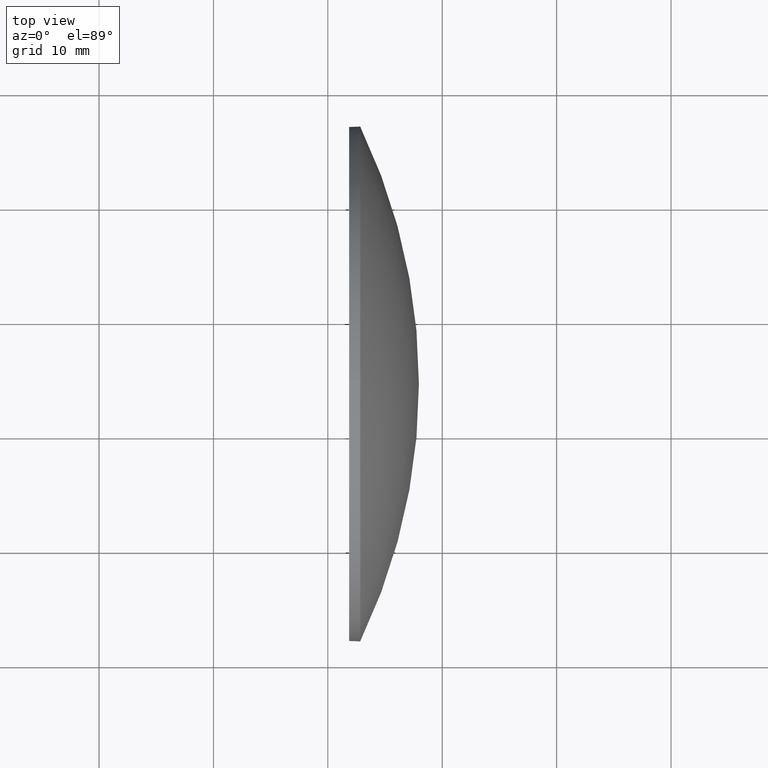
[diagram: clean part render]
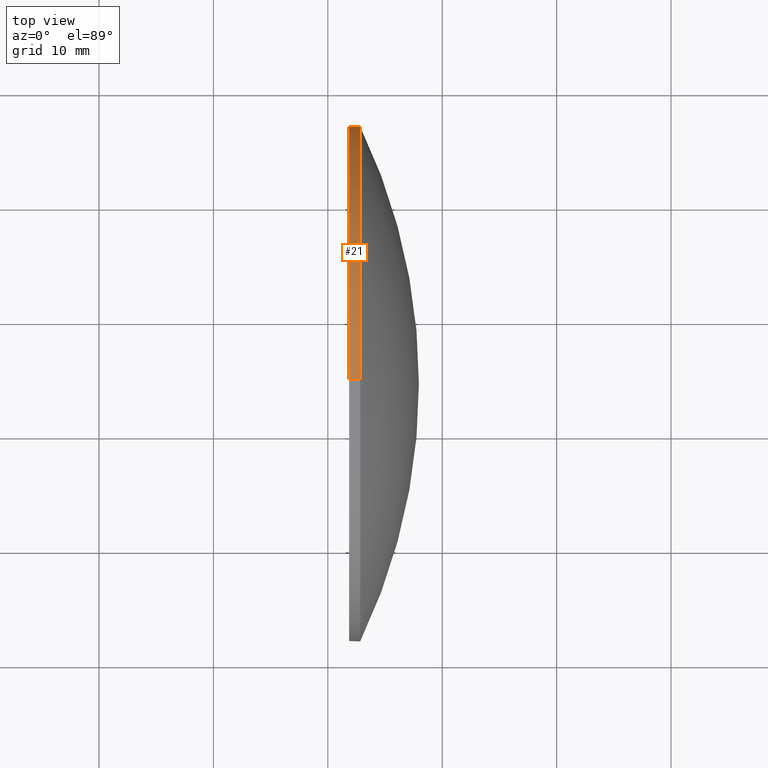
[diagram: same view with one face highlighted and labeled with its STEP entity id]
A machine part, top view. The second image highlights one B-rep face of the part: STEP entity #21.
In plain terms, the highlighted cylindrical surface (partial cylindrical patch) has radius 22.5 mm, axis along (-1, -0, -0).
Its self-contained STEP definition (entity closure, byte-faithful):
#2 = CARTESIAN_POINT ( 'NONE',  ( 192.8294665386367500, -255.6056703500554500, 0.0000000000000000000 ) ) ;
#13 = VECTOR ( 'NONE', #97, 1000.000000000000000 ) ;
#16 = CIRCLE ( 'NONE', #114, 22.49999999999999300 ) ;
#21 = ADVANCED_FACE ( 'NONE', ( #49 ), #177, .T. ) ;
#24 = VECTOR ( 'NONE', #33, 1000.000000000000000 ) ;
#26 = DIRECTION ( 'NONE',  ( -1.000000000000000000, -0.0000000000000000000, -0.0000000000000000000 ) ) ;
#28 = DIRECTION ( 'NONE',  ( -1.000000000000000000, -0.0000000000000000000, -0.0000000000000000000 ) ) ;
#33 = DIRECTION ( 'NONE',  ( -1.000000000000000000, -0.0000000000000000000, -0.0000000000000000000 ) ) ;
#45 = ORIENTED_EDGE ( 'NONE', *, *, #78, .F. ) ;
#48 = LINE ( 'NONE', #84, #24 ) ;
#49 = FACE_OUTER_BOUND ( 'NONE', #92, .T. ) ;
#50 = CARTESIAN_POINT ( 'NONE',  ( 192.8294665386367500, -255.6056703500554500, -22.49999999999999300 ) ) ;
#55 = VERTEX_POINT ( 'NONE', #69 ) ;
#59 = ORIENTED_EDGE ( 'NONE', *, *, #155, .T. ) ;
#69 = CARTESIAN_POINT ( 'NONE',  ( 191.8594665386367500, -255.6056703500554500, -22.49999999999999300 ) ) ;
#75 = DIRECTION ( 'NONE',  ( 0.0000000000000000000, 0.0000000000000000000, 1.000000000000000000 ) ) ;
#78 = EDGE_CURVE ( 'NONE', #159, #55, #16, .T. ) ;
#84 = CARTESIAN_POINT ( 'NONE',  ( 187.8163450691519100, -255.6056703500554500, -22.49999999999999300 ) ) ;
#85 = VERTEX_POINT ( 'NONE', #140 ) ;
#92 = EDGE_LOOP ( 'NONE', ( #151, #161, #45, #116, #59 ) ) ;
#94 = DIRECTION ( 'NONE',  ( 0.0000000000000000000, 0.0000000000000000000, 1.000000000000000000 ) ) ;
#96 = DIRECTION ( 'NONE',  ( -1.000000000000000000, -0.0000000000000000000, -0.0000000000000000000 ) ) ;
#97 = DIRECTION ( 'NONE',  ( -1.000000000000000000, -0.0000000000000000000, -0.0000000000000000000 ) ) ;
#98 = DIRECTION ( 'NONE',  ( -1.000000000000000000, -0.0000000000000000000, -0.0000000000000000000 ) ) ;
#102 = VERTEX_POINT ( 'NONE', #122 ) ;
#104 = AXIS2_PLACEMENT_3D ( 'NONE', #147, #96, #75 ) ;
#105 = CARTESIAN_POINT ( 'NONE',  ( 191.8594665386367500, -255.6056703500554500, 0.0000000000000000000 ) ) ;
#106 = DIRECTION ( 'NONE',  ( 0.0000000000000000000, 0.0000000000000000000, 1.000000000000000000 ) ) ;
#109 = LINE ( 'NONE', #123, #13 ) ;
#110 = DIRECTION ( 'NONE',  ( 0.0000000000000000000, 0.0000000000000000000, 1.000000000000000000 ) ) ;
#114 = AXIS2_PLACEMENT_3D ( 'NONE', #105, #26, #106 ) ;
#116 = ORIENTED_EDGE ( 'NONE', *, *, #176, .F. ) ;
#119 = EDGE_CURVE ( 'NONE', #85, #169, #150, .T. ) ;
#122 = CARTESIAN_POINT ( 'NONE',  ( 192.8294665386367500, -255.6056703500554500, 22.49999999999999300 ) ) ;
#123 = CARTESIAN_POINT ( 'NONE',  ( 187.8163450691519100, -255.6056703500554500, 22.49999999999999300 ) ) ;
#140 = CARTESIAN_POINT ( 'NONE',  ( 192.8294665386367500, -233.1056703500554500, 0.0000000000000000000 ) ) ;
#143 = CARTESIAN_POINT ( 'NONE',  ( 191.8594665386367500, -255.6056703500554500, 22.49999999999999300 ) ) ;
#146 = EDGE_CURVE ( 'NONE', #169, #55, #48, .T. ) ;
#147 = CARTESIAN_POINT ( 'NONE',  ( 192.8294665386367500, -255.6056703500554500, 0.0000000000000000000 ) ) ;
#150 = CIRCLE ( 'NONE', #104, 22.49999999999999300 ) ;
#151 = ORIENTED_EDGE ( 'NONE', *, *, #119, .T. ) ;
#155 = EDGE_CURVE ( 'NONE', #102, #85, #175, .T. ) ;
#156 = CARTESIAN_POINT ( 'NONE',  ( 187.8163450691519100, -255.6056703500554500, 0.0000000000000000000 ) ) ;
#159 = VERTEX_POINT ( 'NONE', #143 ) ;
#161 = ORIENTED_EDGE ( 'NONE', *, *, #146, .T. ) ;
#168 = AXIS2_PLACEMENT_3D ( 'NONE', #156, #28, #94 ) ;
#169 = VERTEX_POINT ( 'NONE', #50 ) ;
#170 = AXIS2_PLACEMENT_3D ( 'NONE', #2, #98, #110 ) ;
#175 = CIRCLE ( 'NONE', #170, 22.49999999999999300 ) ;
#176 = EDGE_CURVE ( 'NONE', #102, #159, #109, .T. ) ;
#177 = CYLINDRICAL_SURFACE ( 'NONE', #168, 22.49999999999999300 ) ;